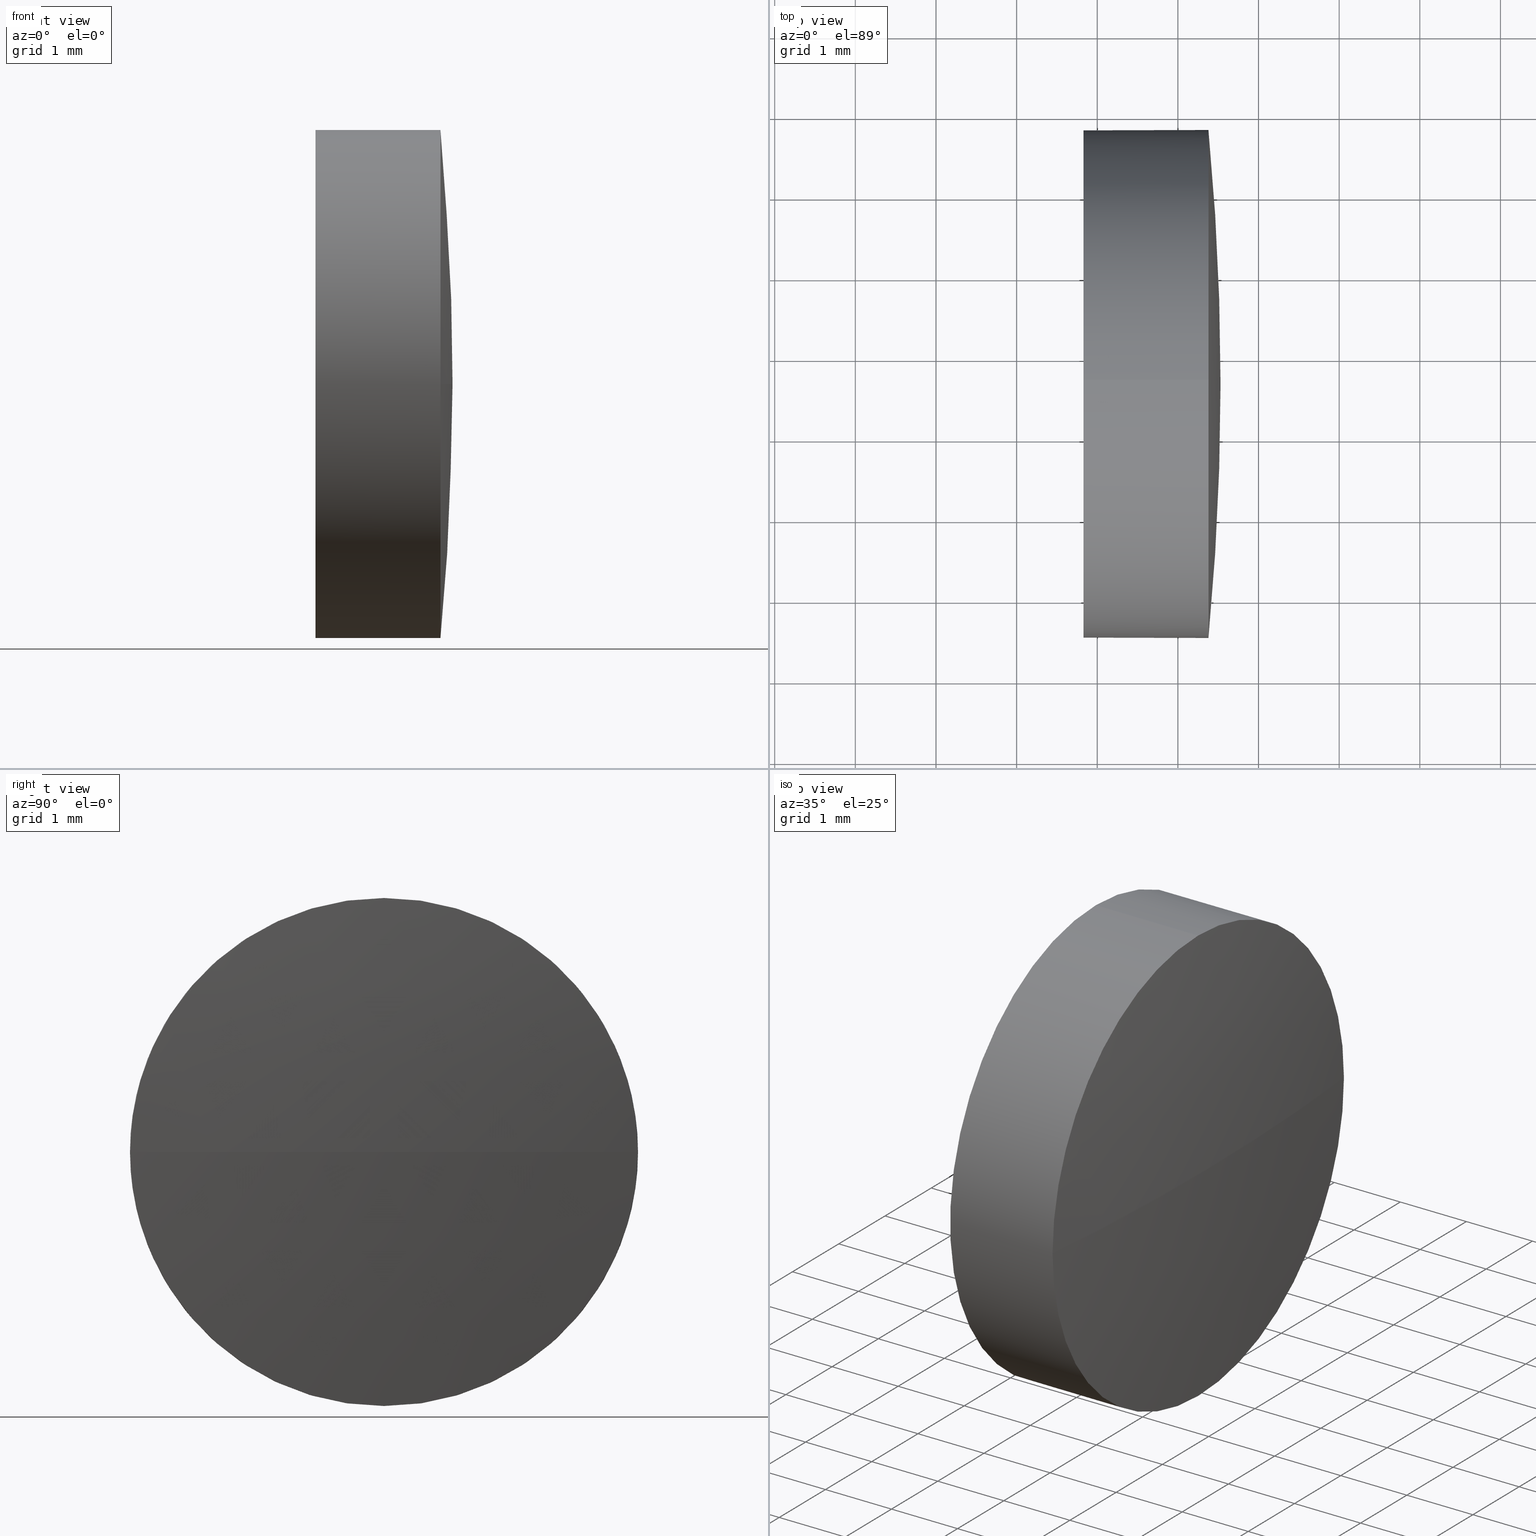
[diagram: canonical four-view strip — front | top / right | iso, engineering-drawing reading convention]
A machine part, canonical four-view strip (front | top / right | iso — engineering-drawing reading convention). The complete STEP part file that produces these views, byte-faithful:
ISO-10303-21;
HEADER;
FILE_DESCRIPTION (( 'STEP AP214' ),
    '1' );
FILE_NAME ('100099.STEP',
    '2019-05-13T06:11:59',
    ( '' ),
    ( '' ),
    'SwSTEP 2.0',
    'SolidWorks 2016',
    '' );
FILE_SCHEMA (( 'AUTOMOTIVE_DESIGN' ));
ENDSEC;

DATA;
#1 = CARTESIAN_POINT ( 'NONE',  ( 485.8289024889173200, 224.6626212863787900, -3.150000000000013700 ) ) ;
#2 = CIRCLE ( 'NONE', #68, 3.150000000000013700 ) ;
#3 = AXIS2_PLACEMENT_3D ( 'NONE', #165, #56, #93 ) ;
#4 = VERTEX_POINT ( 'NONE', #42 ) ;
#5 = CIRCLE ( 'NONE', #7, 3.150000000000013700 ) ;
#6 = ORIENTED_EDGE ( 'NONE', *, *, #47, .F. ) ;
#7 = AXIS2_PLACEMENT_3D ( 'NONE', #59, #142, #110 ) ;
#8 = APPLICATION_PROTOCOL_DEFINITION ( 'draft international standard', 'automotive_design', 1998, #96 ) ;
#9 = DIRECTION ( 'NONE',  ( -1.000000000000000000, 0.0000000000000000000, 0.0000000000000000000 ) ) ;
#10 =( NAMED_UNIT ( * ) PLANE_ANGLE_UNIT ( ) SI_UNIT ( $, .RADIAN. ) );
#11 = CIRCLE ( 'NONE', #3, 3.150000000000013700 ) ;
#12 = UNCERTAINTY_MEASURE_WITH_UNIT (LENGTH_MEASURE( 1.000000000000000100E-005 ), #157, 'distance_accuracy_value', 'NONE');
#13 = EDGE_LOOP ( 'NONE', ( #150, #172, #61, #182 ) ) ;
#14 = DIRECTION ( 'NONE',  ( -1.000000000000000000, -0.0000000000000000000, -0.0000000000000000000 ) ) ;
#15 = DIRECTION ( 'NONE',  ( 0.0000000000000000000, -1.000000000000000000, 0.0000000000000000000 ) ) ;
#16 = CARTESIAN_POINT ( 'NONE',  ( 485.8289024889173200, 224.6626212863787900, 0.0000000000000000000 ) ) ;
#17 = ADVANCED_FACE ( 'NONE', ( #152 ), #69, .T. ) ;
#18 = CARTESIAN_POINT ( 'NONE',  ( 487.3789024889172800, 224.6626212863787900, 0.0000000000000000000 ) ) ;
#19 = EDGE_LOOP ( 'NONE', ( #75, #73, #128, #107 ) ) ;
#20 = AXIS2_PLACEMENT_3D ( 'NONE', #158, #14, #88 ) ;
#21 = ORIENTED_EDGE ( 'NONE', *, *, #92, .T. ) ;
#22 = CIRCLE ( 'NONE', #84, 3.150000000000013700 ) ;
#23 = DIRECTION ( 'NONE',  ( 0.0000000000000000000, 0.0000000000000000000, -1.000000000000000000 ) ) ;
#24 = COLOUR_RGB ( '',1.000000000000000000, 1.000000000000000000, 1.000000000000000000 ) ;
#25 = EDGE_LOOP ( 'NONE', ( #6, #121, #164, #21, #111 ) ) ;
#26 = MECHANICAL_DESIGN_GEOMETRIC_PRESENTATION_REPRESENTATION (  '', ( #104 ), #45 ) ;
#27 = DIRECTION ( 'NONE',  ( 0.0000000000000000000, -1.000000000000000000, 0.0000000000000000000 ) ) ;
#28 =( GEOMETRIC_REPRESENTATION_CONTEXT ( 3 ) GLOBAL_UNCERTAINTY_ASSIGNED_CONTEXT ( ( #12 ) ) GLOBAL_UNIT_ASSIGNED_CONTEXT ( ( #157, #115, #129 ) ) REPRESENTATION_CONTEXT ( 'NONE', 'WORKASPACE' ) );
#29 = CARTESIAN_POINT ( 'NONE',  ( 454.3789024889172800, 224.6626212863788800, 0.0000000000000000000 ) ) ;
#30 = LINE ( 'NONE', #147, #46 ) ;
#31 = SURFACE_STYLE_FILL_AREA ( #112 ) ;
#32 = VERTEX_POINT ( 'NONE', #65 ) ;
#33 = DIRECTION ( 'NONE',  ( 0.0000000000000000000, -1.000000000000000000, -1.224646799147353200E-016 ) ) ;
#34 = DIRECTION ( 'NONE',  ( 0.0000000000000000000, -1.224646799147353200E-016, 1.000000000000000000 ) ) ;
#35 = EDGE_LOOP ( 'NONE', ( #72, #89 ) ) ;
#36 = ADVANCED_FACE ( 'NONE', ( #64 ), #169, .F. ) ;
#37 = EDGE_CURVE ( 'NONE', #153, #4, #117, .T. ) ;
#38 = PRODUCT_DEFINITION_SHAPE ( 'NONE', 'NONE',  #57 ) ;
#39 = DIRECTION ( 'NONE',  ( -1.000000000000000000, -0.0000000000000000000, -0.0000000000000000000 ) ) ;
#40 = ORIENTED_EDGE ( 'NONE', *, *, #47, .T. ) ;
#41 = AXIS2_PLACEMENT_3D ( 'NONE', #95, #34, #33 ) ;
#42 = CARTESIAN_POINT ( 'NONE',  ( 487.3789024889172800, 227.8126212863787400, 3.857637417314024600E-016 ) ) ;
#43 = ORIENTED_EDGE ( 'NONE', *, *, #92, .F. ) ;
#44 = DIRECTION ( 'NONE',  ( 0.0000000000000000000, 0.0000000000000000000, 1.000000000000000000 ) ) ;
#45 =( GEOMETRIC_REPRESENTATION_CONTEXT ( 3 ) GLOBAL_UNCERTAINTY_ASSIGNED_CONTEXT ( ( #66 ) ) GLOBAL_UNIT_ASSIGNED_CONTEXT ( ( #124, #178, #140 ) ) REPRESENTATION_CONTEXT ( 'NONE', 'WORKASPACE' ) );
#46 = VECTOR ( 'NONE', #133, 1000.000000000000000 ) ;
#47 = EDGE_CURVE ( 'NONE', #91, #123, #30, .T. ) ;
#48 = ADVANCED_FACE ( 'NONE', ( #175 ), #80, .T. ) ;
#49 = APPLICATION_PROTOCOL_DEFINITION ( 'draft international standard', 'automotive_design', 1998, #76 ) ;
#50 = AXIS2_PLACEMENT_3D ( 'NONE', #94, #162, #141 ) ;
#51 = DIRECTION ( 'NONE',  ( 0.0000000000000000000, 0.0000000000000000000, 1.000000000000000000 ) ) ;
#52 = ADVANCED_BREP_SHAPE_REPRESENTATION ( '100099', ( #118, #50 ), #77 ) ;
#53 = SURFACE_SIDE_STYLE ('',( #146 ) ) ;
#54 = CLOSED_SHELL ( 'NONE', ( #99, #17, #48, #79, #36 ) ) ;
#55 = CIRCLE ( 'NONE', #174, 3.150000000000013700 ) ;
#56 = DIRECTION ( 'NONE',  ( -1.000000000000000000, -0.0000000000000000000, -0.0000000000000000000 ) ) ;
#57 = PRODUCT_DEFINITION ( 'δ֪', '', #166, #86 ) ;
#58 = CYLINDRICAL_SURFACE ( 'NONE', #20, 3.150000000000013700 ) ;
#59 = CARTESIAN_POINT ( 'NONE',  ( 485.8289024889173200, 224.6626212863787900, 0.0000000000000000000 ) ) ;
#60 = CARTESIAN_POINT ( 'NONE',  ( 487.3789024889172800, 224.6626212863787900, 0.0000000000000000000 ) ) ;
#61 = ORIENTED_EDGE ( 'NONE', *, *, #37, .F. ) ;
#62 = DIRECTION ( 'NONE',  ( 0.0000000000000000000, 0.0000000000000000000, 1.000000000000000000 ) ) ;
#63 = AXIS2_PLACEMENT_3D ( 'NONE', #82, #145, #171 ) ;
#64 = FACE_OUTER_BOUND ( 'NONE', #35, .T. ) ;
#65 = CARTESIAN_POINT ( 'NONE',  ( 485.8289024889173200, 224.6626212863787900, 3.150000000000013700 ) ) ;
#66 = UNCERTAINTY_MEASURE_WITH_UNIT (LENGTH_MEASURE( 1.000000000000000100E-005 ), #124, 'distance_accuracy_value', 'NONE');
#67 = DIRECTION ( 'NONE',  ( -1.000000000000000000, -0.0000000000000000000, -0.0000000000000000000 ) ) ;
#68 = AXIS2_PLACEMENT_3D ( 'NONE', #60, #143, #62 ) ;
#69 = SPHERICAL_SURFACE ( 'NONE', #168, 33.15000000000001300 ) ;
#70 = CARTESIAN_POINT ( 'NONE',  ( 484.9672743193327700, 224.6626212863787900, 3.150000000000013700 ) ) ;
#71 = VECTOR ( 'NONE', #67, 1000.000000000000000 ) ;
#72 = ORIENTED_EDGE ( 'NONE', *, *, #106, .T. ) ;
#73 = ORIENTED_EDGE ( 'NONE', *, *, #180, .T. ) ;
#74 = AXIS2_PLACEMENT_3D ( 'NONE', #29, #51, #15 ) ;
#75 = ORIENTED_EDGE ( 'NONE', *, *, #144, .F. ) ;
#76 = APPLICATION_CONTEXT ( 'automotive_design' ) ;
#77 =( GEOMETRIC_REPRESENTATION_CONTEXT ( 3 ) GLOBAL_UNCERTAINTY_ASSIGNED_CONTEXT ( ( #132 ) ) GLOBAL_UNIT_ASSIGNED_CONTEXT ( ( #177, #10, #78 ) ) REPRESENTATION_CONTEXT ( 'NONE', 'WORKASPACE' ) );
#78 =( NAMED_UNIT ( * ) SI_UNIT ( $, .STERADIAN. ) SOLID_ANGLE_UNIT ( ) );
#79 = ADVANCED_FACE ( 'NONE', ( #160 ), #105, .T. ) ;
#80 = SPHERICAL_SURFACE ( 'NONE', #74, 33.15000000000001300 ) ;
#81 = PRODUCT_RELATED_PRODUCT_CATEGORY ( 'part', '', ( #137 ) ) ;
#82 = CARTESIAN_POINT ( 'NONE',  ( 487.3789024889172800, 224.6626212863787900, 0.0000000000000000000 ) ) ;
#83 = DIRECTION ( 'NONE',  ( 0.0000000000000000000, 0.0000000000000000000, 1.000000000000000000 ) ) ;
#84 = AXIS2_PLACEMENT_3D ( 'NONE', #18, #161, #44 ) ;
#85 = DIRECTION ( 'NONE',  ( -1.000000000000000000, -0.0000000000000000000, -0.0000000000000000000 ) ) ;
#86 = PRODUCT_DEFINITION_CONTEXT ( 'detailed design', #96, 'design' ) ;
#87 = CARTESIAN_POINT ( 'NONE',  ( 487.3789024889172800, 221.5126212863788700, 0.0000000000000000000 ) ) ;
#88 = DIRECTION ( 'NONE',  ( 0.0000000000000000000, 0.0000000000000000000, 1.000000000000000000 ) ) ;
#89 = ORIENTED_EDGE ( 'NONE', *, *, #151, .T. ) ;
#90 = SHAPE_DEFINITION_REPRESENTATION ( #38, #52 ) ;
#91 = VERTEX_POINT ( 'NONE', #148 ) ;
#92 = EDGE_CURVE ( 'NONE', #153, #32, #120, .T. ) ;
#93 = DIRECTION ( 'NONE',  ( 0.0000000000000000000, 0.0000000000000000000, 1.000000000000000000 ) ) ;
#94 = CARTESIAN_POINT ( 'NONE',  ( 0.0000000000000000000, 0.0000000000000000000, 0.0000000000000000000 ) ) ;
#95 = CARTESIAN_POINT ( 'NONE',  ( 454.3789024889172800, 224.6626212863788800, 0.0000000000000000000 ) ) ;
#96 = APPLICATION_CONTEXT ( 'automotive_design' ) ;
#97 = CARTESIAN_POINT ( 'NONE',  ( 487.3789024889172800, 224.6626212863787900, 3.150000000000013700 ) ) ;
#98 = CIRCLE ( 'NONE', #41, 33.15000000000001300 ) ;
#99 = ADVANCED_FACE ( 'NONE', ( #156 ), #58, .T. ) ;
#100 = PRODUCT_CONTEXT ( 'NONE', #76, 'mechanical' ) ;
#101 = SURFACE_STYLE_USAGE ( .BOTH. , #53 ) ;
#102 = CARTESIAN_POINT ( 'NONE',  ( 484.9672743193327700, 224.6626212863787900, 0.0000000000000000000 ) ) ;
#103 = CARTESIAN_POINT ( 'NONE',  ( 454.3789024889172800, 224.6626212863788800, 0.0000000000000000000 ) ) ;
#104 = STYLED_ITEM ( 'NONE', ( #135 ), #52 ) ;
#105 = CYLINDRICAL_SURFACE ( 'NONE', #139, 3.150000000000013700 ) ;
#106 = EDGE_CURVE ( 'NONE', #32, #123, #55, .T. ) ;
#107 = ORIENTED_EDGE ( 'NONE', *, *, #138, .F. ) ;
#108 = VERTEX_POINT ( 'NONE', #185 ) ;
#109 = PRESENTATION_LAYER_ASSIGNMENT (  '', '', ( #184 ) ) ;
#110 = DIRECTION ( 'NONE',  ( 0.0000000000000000000, 0.0000000000000000000, 1.000000000000000000 ) ) ;
#111 = ORIENTED_EDGE ( 'NONE', *, *, #151, .F. ) ;
#112 = FILL_AREA_STYLE ('',( #154 ) ) ;
#113 = SURFACE_STYLE_USAGE ( .BOTH. , #127 ) ;
#114 = EDGE_LOOP ( 'NONE', ( #167, #40, #186, #43, #179 ) ) ;
#115 =( NAMED_UNIT ( * ) PLANE_ANGLE_UNIT ( ) SI_UNIT ( $, .RADIAN. ) );
#116 = FILL_AREA_STYLE_COLOUR ( '', #176 ) ;
#117 = CIRCLE ( 'NONE', #63, 3.150000000000013700 ) ;
#118 = MANIFOLD_SOLID_BREP ( '��ת1', #54 ) ;
#119 = CARTESIAN_POINT ( 'NONE',  ( 485.8289024889173200, 224.6626212863787900, 0.0000000000000000000 ) ) ;
#120 = LINE ( 'NONE', #70, #71 ) ;
#121 = ORIENTED_EDGE ( 'NONE', *, *, #155, .T. ) ;
#122 = EDGE_CURVE ( 'NONE', #136, #153, #22, .T. ) ;
#123 = VERTEX_POINT ( 'NONE', #1 ) ;
#124 =( LENGTH_UNIT ( ) NAMED_UNIT ( * ) SI_UNIT ( .MILLI., .METRE. ) );
#125 = CIRCLE ( 'NONE', #134, 33.15000000000001300 ) ;
#126 = CARTESIAN_POINT ( 'NONE',  ( 454.3789024889172800, 224.6626212863788800, 0.0000000000000000000 ) ) ;
#127 = SURFACE_SIDE_STYLE ('',( #31 ) ) ;
#128 = ORIENTED_EDGE ( 'NONE', *, *, #155, .F. ) ;
#129 =( NAMED_UNIT ( * ) SI_UNIT ( $, .STERADIAN. ) SOLID_ANGLE_UNIT ( ) );
#130 = MECHANICAL_DESIGN_GEOMETRIC_PRESENTATION_REPRESENTATION (  '', ( #184 ), #28 ) ;
#131 = DIRECTION ( 'NONE',  ( 1.000000000000000000, 0.0000000000000000000, 0.0000000000000000000 ) ) ;
#132 = UNCERTAINTY_MEASURE_WITH_UNIT (LENGTH_MEASURE( 1.000000000000000100E-005 ), #177, 'distance_accuracy_value', 'NONE');
#133 = DIRECTION ( 'NONE',  ( -1.000000000000000000, -0.0000000000000000000, -0.0000000000000000000 ) ) ;
#134 = AXIS2_PLACEMENT_3D ( 'NONE', #126, #23, #9 ) ;
#135 = PRESENTATION_STYLE_ASSIGNMENT (( #113 ) ) ;
#136 = VERTEX_POINT ( 'NONE', #87 ) ;
#137 = PRODUCT ( '100099', '100099', '', ( #100 ) ) ;
#138 = EDGE_CURVE ( 'NONE', #4, #91, #11, .T. ) ;
#139 = AXIS2_PLACEMENT_3D ( 'NONE', #102, #85, #159 ) ;
#140 =( NAMED_UNIT ( * ) SI_UNIT ( $, .STERADIAN. ) SOLID_ANGLE_UNIT ( ) );
#141 = DIRECTION ( 'NONE',  ( 1.000000000000000000, 0.0000000000000000000, 0.0000000000000000000 ) ) ;
#142 = DIRECTION ( 'NONE',  ( -1.000000000000000000, -0.0000000000000000000, -0.0000000000000000000 ) ) ;
#143 = DIRECTION ( 'NONE',  ( -1.000000000000000000, -0.0000000000000000000, -0.0000000000000000000 ) ) ;
#144 = EDGE_CURVE ( 'NONE', #108, #4, #98, .T. ) ;
#145 = DIRECTION ( 'NONE',  ( -1.000000000000000000, -0.0000000000000000000, -0.0000000000000000000 ) ) ;
#146 = SURFACE_STYLE_FILL_AREA ( #170 ) ;
#147 = CARTESIAN_POINT ( 'NONE',  ( 484.9672743193327700, 224.6626212863787900, -3.150000000000013700 ) ) ;
#148 = CARTESIAN_POINT ( 'NONE',  ( 487.3789024889172800, 224.6626212863787900, -3.150000000000013700 ) ) ;
#149 = DIRECTION ( 'NONE',  ( 0.0000000000000000000, 0.0000000000000000000, 1.000000000000000000 ) ) ;
#150 = ORIENTED_EDGE ( 'NONE', *, *, #180, .F. ) ;
#151 = EDGE_CURVE ( 'NONE', #123, #32, #5, .T. ) ;
#152 = FACE_OUTER_BOUND ( 'NONE', #13, .T. ) ;
#153 = VERTEX_POINT ( 'NONE', #97 ) ;
#154 = FILL_AREA_STYLE_COLOUR ( '', #24 ) ;
#155 = EDGE_CURVE ( 'NONE', #91, #136, #2, .T. ) ;
#156 = FACE_OUTER_BOUND ( 'NONE', #114, .T. ) ;
#157 =( LENGTH_UNIT ( ) NAMED_UNIT ( * ) SI_UNIT ( .MILLI., .METRE. ) );
#158 = CARTESIAN_POINT ( 'NONE',  ( 484.9672743193327700, 224.6626212863787900, 0.0000000000000000000 ) ) ;
#159 = DIRECTION ( 'NONE',  ( 0.0000000000000000000, 0.0000000000000000000, 1.000000000000000000 ) ) ;
#160 = FACE_OUTER_BOUND ( 'NONE', #25, .T. ) ;
#161 = DIRECTION ( 'NONE',  ( -1.000000000000000000, -0.0000000000000000000, -0.0000000000000000000 ) ) ;
#162 = DIRECTION ( 'NONE',  ( 0.0000000000000000000, 0.0000000000000000000, 1.000000000000000000 ) ) ;
#163 = AXIS2_PLACEMENT_3D ( 'NONE', #16, #131, #183 ) ;
#164 = ORIENTED_EDGE ( 'NONE', *, *, #122, .T. ) ;
#165 = CARTESIAN_POINT ( 'NONE',  ( 487.3789024889172800, 224.6626212863787900, 0.0000000000000000000 ) ) ;
#166 = PRODUCT_DEFINITION_FORMATION_WITH_SPECIFIED_SOURCE ( '�κ�', '', #137, .NOT_KNOWN. ) ;
#167 = ORIENTED_EDGE ( 'NONE', *, *, #138, .T. ) ;
#168 = AXIS2_PLACEMENT_3D ( 'NONE', #103, #83, #27 ) ;
#169 = PLANE ( 'NONE',  #163 ) ;
#170 = FILL_AREA_STYLE ('',( #116 ) ) ;
#171 = DIRECTION ( 'NONE',  ( 0.0000000000000000000, 0.0000000000000000000, 1.000000000000000000 ) ) ;
#172 = ORIENTED_EDGE ( 'NONE', *, *, #144, .T. ) ;
#173 = PRESENTATION_STYLE_ASSIGNMENT (( #101 ) ) ;
#174 = AXIS2_PLACEMENT_3D ( 'NONE', #119, #39, #149 ) ;
#175 = FACE_OUTER_BOUND ( 'NONE', #19, .T. ) ;
#176 = COLOUR_RGB ( '',1.000000000000000000, 1.000000000000000000, 1.000000000000000000 ) ;
#177 =( LENGTH_UNIT ( ) NAMED_UNIT ( * ) SI_UNIT ( .MILLI., .METRE. ) );
#178 =( NAMED_UNIT ( * ) PLANE_ANGLE_UNIT ( ) SI_UNIT ( $, .RADIAN. ) );
#179 = ORIENTED_EDGE ( 'NONE', *, *, #37, .T. ) ;
#180 = EDGE_CURVE ( 'NONE', #108, #136, #125, .T. ) ;
#181 = PRESENTATION_LAYER_ASSIGNMENT (  '', '', ( #104 ) ) ;
#182 = ORIENTED_EDGE ( 'NONE', *, *, #122, .F. ) ;
#183 = DIRECTION ( 'NONE',  ( 0.0000000000000000000, 0.0000000000000000000, -1.000000000000000000 ) ) ;
#184 = STYLED_ITEM ( 'NONE', ( #173 ), #118 ) ;
#185 = CARTESIAN_POINT ( 'NONE',  ( 487.5289024889172500, 224.6626212863788800, 0.0000000000000000000 ) ) ;
#186 = ORIENTED_EDGE ( 'NONE', *, *, #106, .F. ) ;
ENDSEC;
END-ISO-10303-21;
